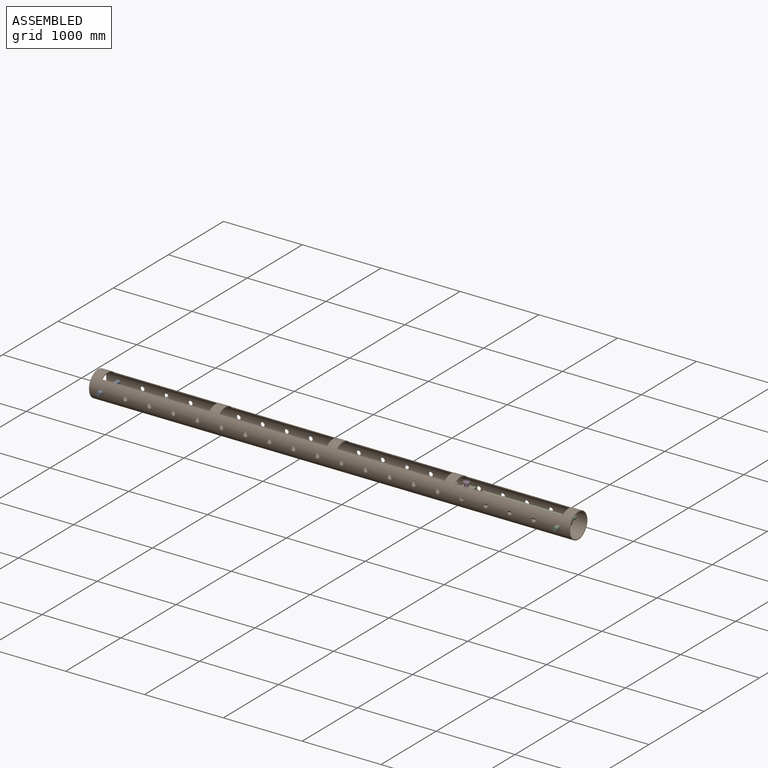
[diagram: assembled view]
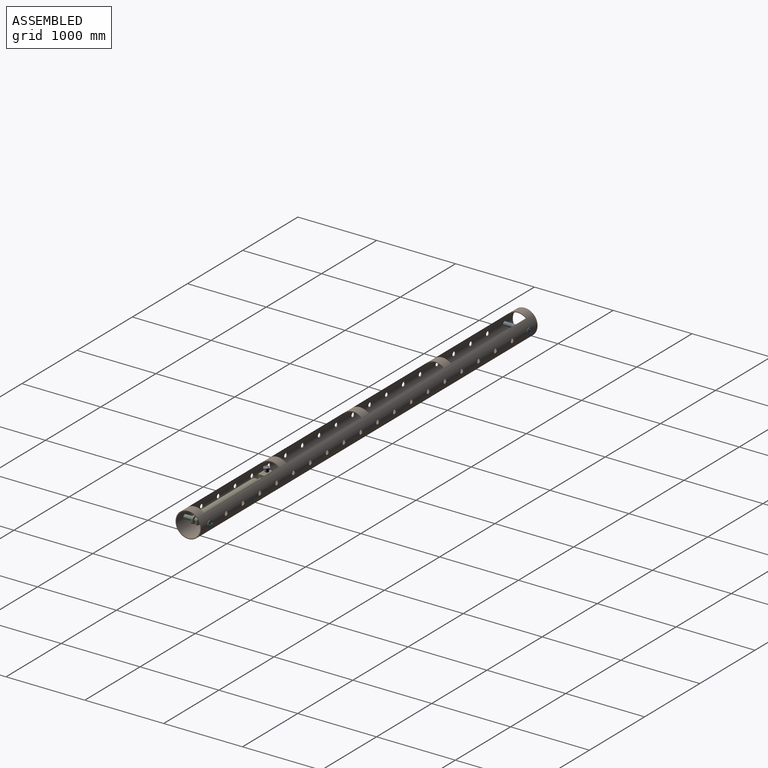
[diagram: assembled view, second angle]
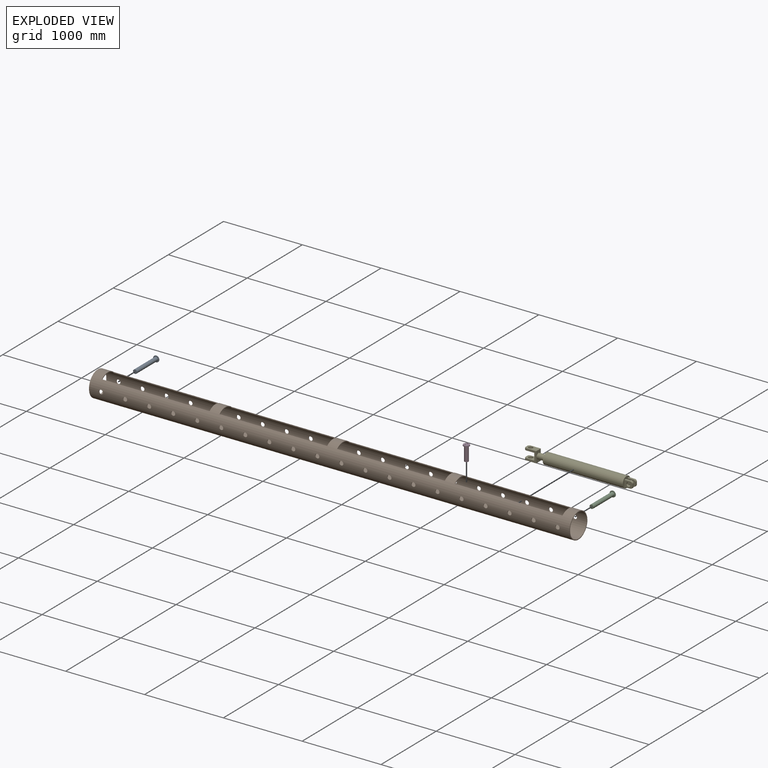
[diagram: exploded view]
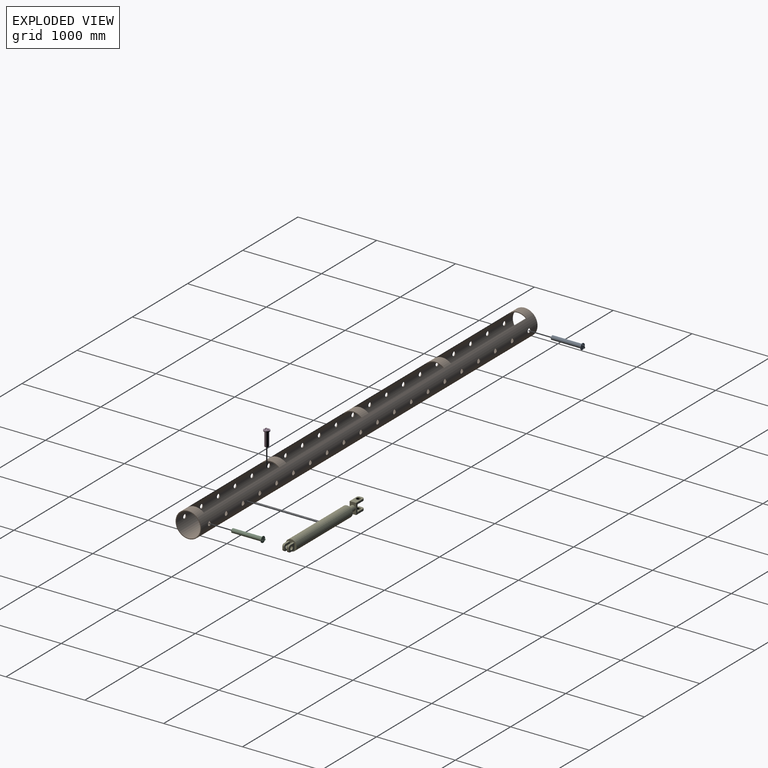
[diagram: exploded view, second angle]
ASSEMBLY  parts=5 mates=4
PART A: 6 faces, bbox 76.2x418.3x76.2 mm
  f0: cylinder r=25.15mm len=381mm, axis (0,1,0), area 60196.8mm2, adj f1,f4
  f1: plane 50.29x50.29mm, normal (0,-1,0), area 1986.5mm2, adj f0
  f2: cylinder r=38.1mm len=76.2mm, axis (0,-1,0), area 1520.1mm2, adj f3,f4
  f3: plane 76.2x76.2mm, normal (0,1,0), area 4497mm2, adj f2,f5
  f4: plane 76.2x76.2mm, normal (0,-1,0), area 2573.9mm2, adj f0,f2
  f5: torus R=25.4mm, axis (-1,0,0), area 1591.9mm2, adj f3
PART B: 60 faces, bbox 6096x323.9x323.9 mm
  f0: cylinder r=152.4mm len=6096mm, axis (-1,0,0), area 4443450mm2, adj f2,f3,f4,f5,f6,f7,f8,f9
  f1: cylinder r=161.93mm len=6096mm, axis (-1,0,0), area 4827816.4mm2, adj f2,f3,f4,f5,f6,f7,f8,f9
  f2: plane 323.85x323.85mm, normal (1,0,0), area 9405.8mm2, adj f0,f1
  f3: plane 323.85x323.85mm, normal (-1,0,0), area 9405.8mm2, adj f0,f1
  f4: cylinder r=26.19mm len=52.39mm, axis (0,1,0), area 1578.7mm2, adj f0,f1
  f5: cylinder r=26.19mm len=52.39mm, axis (0,1,0), area 1578.7mm2, adj f0,f1
  f6: cylinder r=26.19mm len=52.39mm, axis (0,1,0), area 1578.7mm2, adj f0,f1
  f7: cylinder r=26.19mm len=52.39mm, axis (0,1,0), area 1578.7mm2, adj f0,f1
  f8: cylinder r=26.19mm len=52.39mm, axis (0,1,0), area 1578.7mm2, adj f0,f1
  f9: cylinder r=26.19mm len=52.39mm, axis (0,1,0), area 1578.7mm2, adj f0,f1
  f10: cylinder r=26.19mm len=52.39mm, axis (0,1,0), area 1578.7mm2, adj f0,f1
  f11: cylinder r=26.19mm len=52.39mm, axis (0,1,0), area 1578.7mm2, adj f0,f1
  f12: cylinder r=26.19mm len=52.39mm, axis (0,1,0), area 1578.7mm2, adj f0,f1
  f13: cylinder r=26.19mm len=52.39mm, axis (0,1,0), area 1578.7mm2, adj f0,f1
  f14: cylinder r=26.19mm len=52.39mm, axis (0,1,0), area 1578.7mm2, adj f0,f1
  f15: cylinder r=26.19mm len=52.39mm, axis (0,1,0), area 1578.7mm2, adj f0,f1
  f16: cylinder r=26.19mm len=52.39mm, axis (0,1,0), area 1578.7mm2, adj f0,f1
  f17: cylinder r=26.19mm len=52.39mm, axis (0,1,0), area 1578.7mm2, adj f0,f1
  f18: cylinder r=26.19mm len=52.39mm, axis (0,1,0), area 1578.7mm2, adj f0,f1
  f19: cylinder r=26.19mm len=52.39mm, axis (0,1,0), area 1578.7mm2, adj f0,f1
  f20: cylinder r=26.19mm len=52.39mm, axis (0,1,0), area 1578.7mm2, adj f0,f1
  f21: cylinder r=26.19mm len=52.39mm, axis (0,1,0), area 1578.7mm2, adj f0,f1
  f22: cylinder r=26.19mm len=52.39mm, axis (0,1,0), area 1578.7mm2, adj f0,f1
  f23: cylinder r=26.19mm len=52.39mm, axis (0,1,0), area 1578.7mm2, adj f0,f1
  f24: cylinder r=26.19mm len=52.39mm, axis (0,1,0), area 1578.7mm2, adj f0,f1
  f25: cylinder r=26.19mm len=52.39mm, axis (0,1,0), area 1578.7mm2, adj f0,f1
  f26: cylinder r=26.19mm len=52.39mm, axis (0,1,0), area 1578.7mm2, adj f0,f1
  f27: cylinder r=26.19mm len=52.39mm, axis (0,1,0), area 1578.7mm2, adj f0,f1
  f28: cylinder r=26.19mm len=52.39mm, axis (0,1,0), area 1578.7mm2, adj f0,f1
  f29: cylinder r=26.19mm len=52.39mm, axis (0,1,0), area 1578.7mm2, adj f0,f1
  f30: cylinder r=26.19mm len=52.39mm, axis (0,1,0), area 1578.7mm2, adj f0,f1
  f31: cylinder r=26.19mm len=52.39mm, axis (0,1,0), area 1578.7mm2, adj f0,f1
  f32: cylinder r=26.19mm len=52.39mm, axis (0,1,0), area 1578.7mm2, adj f0,f1
  f33: cylinder r=26.19mm len=52.39mm, axis (0,1,0), area 1578.7mm2, adj f0,f1
  f34: cylinder r=26.19mm len=52.39mm, axis (0,1,0), area 1578.7mm2, adj f0,f1
  f35: cylinder r=26.19mm len=52.39mm, axis (0,1,0), area 1578.7mm2, adj f0,f1
  f36: cylinder r=26.19mm len=52.39mm, axis (0,1,0), area 1578.7mm2, adj f0,f1
  f37: cylinder r=26.19mm len=52.39mm, axis (0,1,0), area 1578.7mm2, adj f0,f1
  f38: cylinder r=26.19mm len=52.39mm, axis (0,1,0), area 1578.7mm2, adj f0,f1
  f39: cylinder r=26.19mm len=52.39mm, axis (0,1,0), area 1578.7mm2, adj f0,f1
  f40: cylinder r=26.19mm len=52.39mm, axis (0,1,0), area 1578.7mm2, adj f0,f1
  f41: cylinder r=26.19mm len=52.39mm, axis (0,1,0), area 1578.7mm2, adj f0,f1
  f42: cylinder r=26.19mm len=52.39mm, axis (0,1,0), area 1578.7mm2, adj f0,f1
  f43: cylinder r=26.19mm len=52.39mm, axis (0,1,0), area 1578.7mm2, adj f0,f1
  f44: plane 1365.25x13.1mm, normal (0,1,0), area 17878.8mm2, adj f0,f1,f46,f47
  f45: plane 1365.25x13.1mm, normal (0,-1,0), area 17878.8mm2, adj f0,f1,f46,f47
  f46: plane 215.53x54.16mm, normal (-1,0,0), area 2262.4mm2, adj f0,f1,f44,f45
  f47: plane 215.53x54.16mm, normal (1,0,0), area 2262.4mm2, adj f0,f1,f44,f45
  f48: plane 1365.25x13.1mm, normal (0,1,0), area 17878.8mm2, adj f0,f1,f50,f51
  f49: plane 1365.25x13.1mm, normal (0,-1,0), area 17878.8mm2, adj f0,f1,f50,f51
  f50: plane 215.53x54.16mm, normal (-1,0,0), area 2262.4mm2, adj f0,f1,f48,f49
  f51: plane 215.53x54.16mm, normal (1,0,0), area 2262.4mm2, adj f0,f1,f48,f49
  f52: plane 1365.25x13.1mm, normal (0,1,0), area 17878.8mm2, adj f0,f1,f54,f55
  f53: plane 1365.25x13.1mm, normal (0,-1,0), area 17878.8mm2, adj f0,f1,f54,f55
  f54: plane 215.53x54.16mm, normal (-1,0,0), area 2262.4mm2, adj f0,f1,f52,f53
  f55: plane 215.53x54.16mm, normal (1,0,0), area 2262.4mm2, adj f0,f1,f52,f53
  f56: plane 1365.25x13.1mm, normal (0,1,0), area 17878.8mm2, adj f0,f1,f58,f59
  f57: plane 1365.25x13.1mm, normal (0,-1,0), area 17878.8mm2, adj f0,f1,f58,f59
  f58: plane 215.53x54.16mm, normal (-1,0,0), area 2262.4mm2, adj f0,f1,f56,f57
  f59: plane 215.53x54.16mm, normal (1,0,0), area 2262.4mm2, adj f0,f1,f56,f57
PART C: same geometry as A
PART D: 6 faces, bbox 76.2x214.6x76.2 mm
  f0: cylinder r=25.4mm len=177.8mm, axis (0,1,0), area 28375.6mm2, adj f1,f4
  f1: plane 50.8x50.8mm, normal (0,1,0), area 2026.8mm2, adj f0
  f2: cylinder r=38.1mm len=76.2mm, axis (0,1,0), area 3040.2mm2, adj f3,f4
  f3: plane 76.2x76.2mm, normal (0,-1,0), area 4497mm2, adj f2,f5
  f4: plane 76.2x76.2mm, normal (0,1,0), area 2533.5mm2, adj f0,f2
  f5: torus R=19.05mm, axis (1,0,0), area 1193.9mm2, adj f3
PART E: 36 faces, bbox 139.7x1371.6x139.7 mm
  f0: plane 139.7x127mm, normal (1,0,0), area 8709.7mm2, adj f1,f3,f5,f8,f9,f14,f31,f35
  f1: plane 152.4x82.55mm, normal (0,0,1), area 10015.6mm2, adj f0,f2,f4,f5,f6,f7,f8
  f2: plane 139.7x127mm, normal (-1,0,0), area 8709.7mm2, adj f1,f3,f5,f7,f9,f14,f31,f34
  f3: plane 127x82.55mm, normal (0,0,-1), area 7918.8mm2, adj f0,f2,f4,f6,f7,f8,f9
  f4: plane 31.75x25.4mm, normal (0,-1,0), area 806.4mm2, adj f1,f3,f7,f8
  f5: plane 139.7x82.55mm, normal (0,1,0), area 7700.3mm2, adj f0,f1,f2,f13,f14
  f6: cylinder r=26.99mm len=53.98mm, axis (0,0,1), area 4307mm2, adj f1,f3
  f7: cylinder r=25.4mm len=25.4mm, axis (0,0,1), area 1013.4mm2, adj f1,f2,f3,f4
  f8: cylinder r=25.4mm len=25.4mm, axis (0,0,-1), area 1013.4mm2, adj f0,f1,f3,f4
  f9: plane 88.9x82.55mm, normal (0,-1,0), area 7338.7mm2, adj f0,f2,f3,f31
  f10: plane 139.7x139.7mm, normal (0,1,0), area 11134.4mm2, adj f11,f15,f16,f17,f18,f20,f21,f22
  f11: cylinder r=69.85mm len=1016mm, axis (0,-1,0), area 445902.6mm2, adj f10,f12
  f12: plane 139.7x139.7mm, normal (0,-1,0), area 11495.9mm2, adj f11,f13
  f13: cylinder r=34.92mm len=101.6mm, axis (0,1,0), area 22295.1mm2, adj f5,f12
  f14: plane 152.4x82.55mm, normal (0,0,-1), area 10015.6mm2, adj f0,f2,f5,f32,f33,f34,f35
  f15: plane 101.6x82.55mm, normal (-1,0,0), area 6083.3mm2, adj f10,f16,f18,f19,f26,f29,f30
  f16: plane 76.2x25.4mm, normal (0,0,1), area 1935.5mm2, adj f10,f15,f17,f29
  f17: plane 101.6x82.55mm, normal (1,0,0), area 6083.3mm2, adj f10,f16,f18,f19,f26,f29,f30
  f18: plane 76.2x25.4mm, normal (0,0,-1), area 1935.5mm2, adj f10,f15,f17,f30
  f19: plane 31.75x25.4mm, normal (0,1,0), area 806.4mm2, adj f15,f17,f29,f30
  f20: plane 101.6x82.55mm, normal (-1,0,0), area 6083.3mm2, adj f10,f21,f23,f24,f25,f27,f28
  f21: plane 76.2x25.4mm, normal (0,0,1), area 1935.5mm2, adj f10,f20,f22,f27
  f22: plane 101.6x82.55mm, normal (1,0,0), area 6083.3mm2, adj f10,f21,f23,f24,f25,f27,f28
  f23: plane 76.2x25.4mm, normal (0,0,-1), area 1935.5mm2, adj f10,f20,f22,f28
  f24: plane 31.75x25.4mm, normal (0,1,0), area 806.4mm2, adj f20,f22,f27,f28
  f25: cylinder r=25.4mm len=50.8mm, axis (-1,0,0), area 4053.7mm2, adj f20,f22
  f26: cylinder r=25.4mm len=50.8mm, axis (-1,0,0), area 4053.7mm2, adj f15,f17
  f27: cylinder r=25.4mm len=25.4mm, axis (-1,0,0), area 1013.4mm2, adj f20,f21,f22,f24
  f28: cylinder r=25.4mm len=25.4mm, axis (1,0,0), area 1013.4mm2, adj f20,f22,f23,f24
  f29: cylinder r=25.4mm len=25.4mm, axis (-1,0,0), area 1013.4mm2, adj f15,f16,f17,f19
  f30: cylinder r=25.4mm len=25.4mm, axis (1,0,0), area 1013.4mm2, adj f15,f17,f18,f19
  f31: plane 127x82.55mm, normal (0,0,1), area 7918.8mm2, adj f0,f2,f9,f32,f33,f34,f35
  f32: plane 31.75x25.4mm, normal (0,-1,0), area 806.4mm2, adj f14,f31,f34,f35
  f33: cylinder r=26.99mm len=53.98mm, axis (0,0,1), area 4307mm2, adj f14,f31
  f34: cylinder r=25.4mm len=25.4mm, axis (0,0,1), area 1013.4mm2, adj f2,f14,f31,f32
  f35: cylinder r=25.4mm len=25.4mm, axis (0,0,-1), area 1013.4mm2, adj f0,f14,f31,f32
PLACE A rot(axis=(0,1,0),21.4deg) t=(429.15,1635.49,-645.41)mm
PLACE B t=(276.75,1473.46,-645.41)mm fixed
PLACE C rot(axis=(0,-1,0),90deg) t=(6220.35,1635.48,-645.41)mm
PLACE D rot(axis=(-0.06,-0.71,0.71),172.9deg) t=(4951.94,1473.56,-715.26)mm
PLACE E rot(axis=(0,0,-1),90deg) t=(5153.55,1473.56,-645.41)mm
MATE cylindrical B.f42 <-> A.f0  axis (0,1,0) through (429.15,1635.48,-645.41)mm
MATE cylindrical C.f0 <-> E.f25  axis (0,1,0) through (6220.35,1444.98,-645.41)mm
MATE cylindrical E.f6 <-> D.f0  axis (0,0,1) through (4951.94,1473.56,-689.86)mm
MATE cylindrical C.f0 <-> B.f4  axis (0,1,0) through (6220.35,1254.48,-645.41)mm
